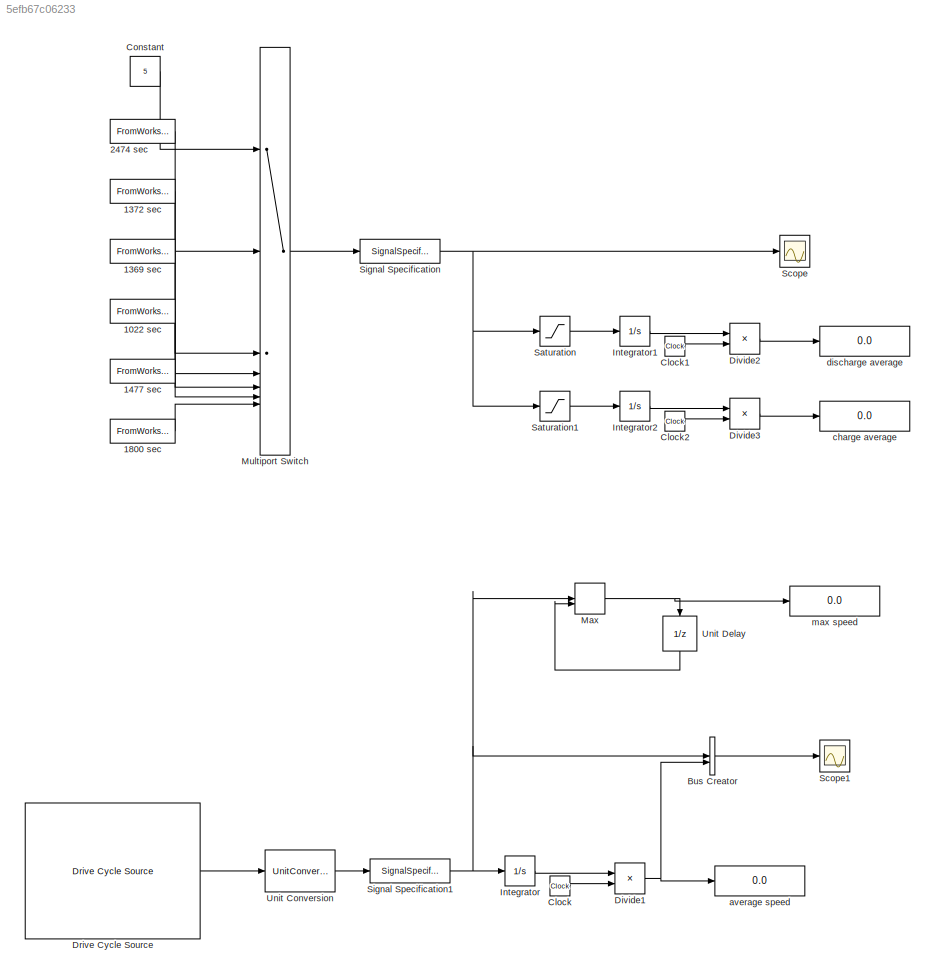
MODEL slx_5efb67c06233
KIND model
CONFIG AbsTol = auto
CONFIG EnableMultiTasking = off
CONFIG FixedStep = auto
CONFIG MaxStep = auto
CONFIG MinStep = auto
CONFIG RelTol = 1e-3
CONFIG SampleTimeConstraint = Unconstrained
CONFIG SolverName = VariableStepAuto
CONFIG StartTime = 0.0
CONFIG StopTime = 1477
BLOCK [FromWorkspace] 1022 sec
  Interpolate = off
  OutputAfterFinalValue = Setting to zero
  VariableName = WLTP_Class_1
  ZeroCross = off
BLOCK [FromWorkspace] 1369 sec
  Interpolate = off
  OutputAfterFinalValue = Setting to zero
  VariableName = HUDDS
  ZeroCross = off
BLOCK [FromWorkspace] 1372 sec
  Interpolate = off
  OutputAfterFinalValue = Setting to zero
  VariableName = FTP72
  ZeroCross = off
BLOCK [FromWorkspace] 1477 sec
  Interpolate = off
  OutputAfterFinalValue = Setting to zero
  VariableName = WLTP_Class_2
  ZeroCross = off
BLOCK [FromWorkspace] 1800 sec
  Interpolate = off
  OutputAfterFinalValue = Setting to zero
  VariableName = WLTP_Class_3
  ZeroCross = off
BLOCK [FromWorkspace] 2474 sec
  Interpolate = off
  OutputAfterFinalValue = Setting to zero
  VariableName = FTP75
  ZeroCross = off
BLOCK [BusCreator] Bus Creator
  DisplayOption = bar
  InheritFromInputs = on
  Inputs = 2
BLOCK [Clock] Clock
BLOCK [Clock] Clock1
BLOCK [Clock] Clock2
BLOCK [Constant] Constant
  Value = 5
BLOCK [Product] Divide1
  Inputs = */
BLOCK [Product] Divide2
  Inputs = */
BLOCK [Product] Divide3
  Inputs = */
BLOCK [Reference] Drive Cycle Source  REF=autolibshared/Drive Cycle Source
  AttributesFormatString = %<cycleVar> (%<tfinal>)
  LibrarySourceBlock = autolibscenario/Drive Cycle Source
  SourceBlock = autolibshared/Drive Cycle Source
  SourceType = Drive Cycle Source
BLOCK [Integrator] Integrator
BLOCK [Integrator] Integrator1
BLOCK [Integrator] Integrator2
BLOCK [MinMax] Max
  Function = max
  Inputs = 2
BLOCK [MultiPortSwitch] Multiport Switch
  InputSameDT = off
  Inputs = 6
  SaturateOnIntegerOverflow = off
BLOCK [Saturate] Saturation
  LowerLimit = 0
  UpperLimit = 200000
BLOCK [Saturate] Saturation1
  LowerLimit = -200000
  UpperLimit = 0
BLOCK [Scope] Scope
  Floating = off
  NumInputPorts = 1
  ScopeSpecificationString = Simulink.scopes.TimeScopeBlockCfg('CurrentConfiguration', extmgr.ConfigurationSet(extmgr.Configuration('Core','General UI',true),extmgr.Configuration('Core','Source UI',true),extmgr.Configuration('Sources','WiredSimulink',true),extmgr.Configuration('Visuals','Time Domain',true,'SerializedDisplays',{struct('MinYLimReal','-57300.78126','MaxYLimReal','82720.86028','YLabelReal','','MinYLimMag','   0.0...<+1399ch>
BLOCK [Scope] Scope1
  Floating = off
  NumInputPorts = 1
  ScopeSpecificationString = Simulink.scopes.TimeScopeBlockCfg('CurrentConfiguration', extmgr.ConfigurationSet(extmgr.Configuration('Core','General UI',true),extmgr.Configuration('Core','Source UI',true),extmgr.Configuration('Sources','WiredSimulink',true,'DataLoggingVariableName','ScopeData1'),extmgr.Configuration('Visuals','Time Domain',true,'SerializedDisplays',{struct('MinYLimReal','-16.4125','MaxYLimReal','147.7125','YLa...<+1424ch>
BLOCK [SignalSpecification] Signal Specification
  Unit = W
BLOCK [SignalSpecification] Signal Specification1
  Unit = km/h
BLOCK [UnitConversion] Unit Conversion
BLOCK [UnitDelay] Unit Delay
  HasFrameUpgradeWarning = on
  NameLocation = left
  SampleTime = -1
BLOCK [Display] average speed
  Decimation = 1
BLOCK [Display] charge average
  Decimation = 1
BLOCK [Display] discharge average
  Decimation = 1
BLOCK [Display] max speed
  Decimation = 1
LINE 1022 sec:1 -> Multiport Switch:5
LINE 1369 sec:1 -> Multiport Switch:4
LINE 1372 sec:1 -> Multiport Switch:3
LINE 1477 sec:1 -> Multiport Switch:6
LINE 1800 sec:1 -> Multiport Switch:7
LINE 2474 sec:1 -> Multiport Switch:2
LINE Bus Creator:1 -> Scope1:1
LINE Clock1:1 -> Divide2:2
LINE Clock2:1 -> Divide3:2
LINE Clock:1 -> Divide1:2
LINE Constant:1 -> Multiport Switch:1
NET Divide1:1 -> Bus Creator:2, average speed:1
LINE Divide2:1 -> discharge average:1
LINE Divide3:1 -> charge average:1
LINE Drive Cycle Source:1 -> Unit Conversion:1
LINE Integrator1:1 -> Divide2:1
LINE Integrator2:1 -> Divide3:1
LINE Integrator:1 -> Divide1:1
NET Max:1 -> Unit Delay:1, max speed:1
LINE Multiport Switch:1 -> Signal Specification:1
LINE Saturation1:1 -> Integrator2:1
LINE Saturation:1 -> Integrator1:1
NET Signal Specification1:1 -> Bus Creator:1, Integrator:1, Max:1
NET Signal Specification:1 -> Saturation1:1, Saturation:1, Scope:1
LINE Unit Conversion:1 -> Signal Specification1:1
LINE Unit Delay:1 -> Max:2
note: NET lines group one-source signal fan-out (src -> all destinations, sorted); 1:1 wires keep LINE
